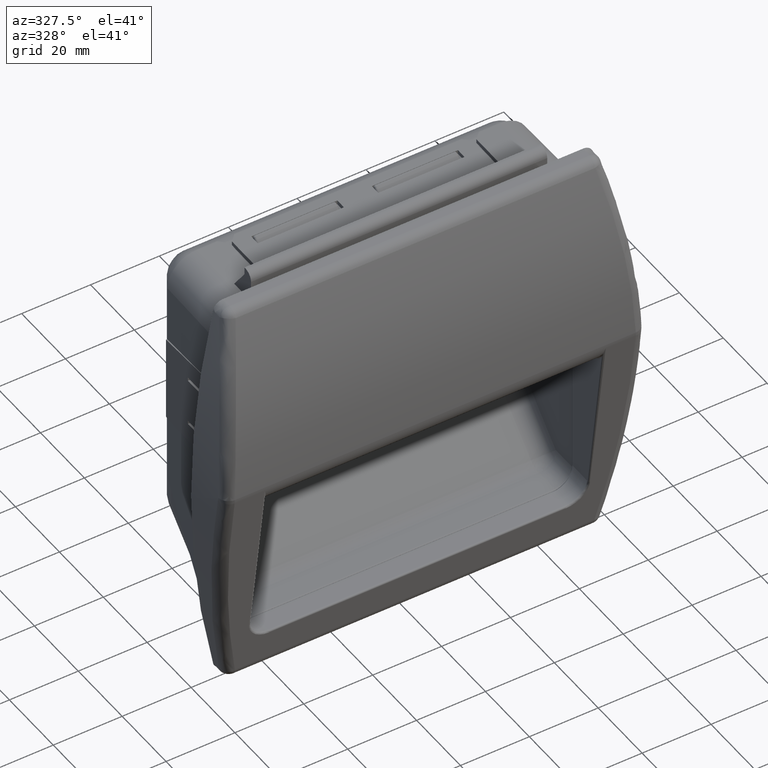
[diagram: clean part render]
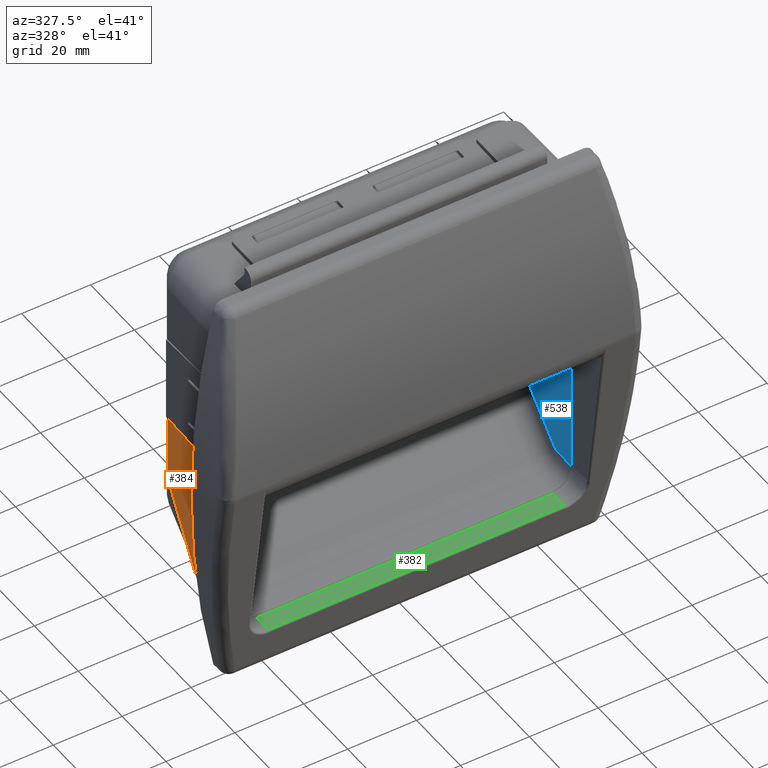
[diagram: same view with three faces highlighted in distinct colors, each labeled with its STEP entity id]
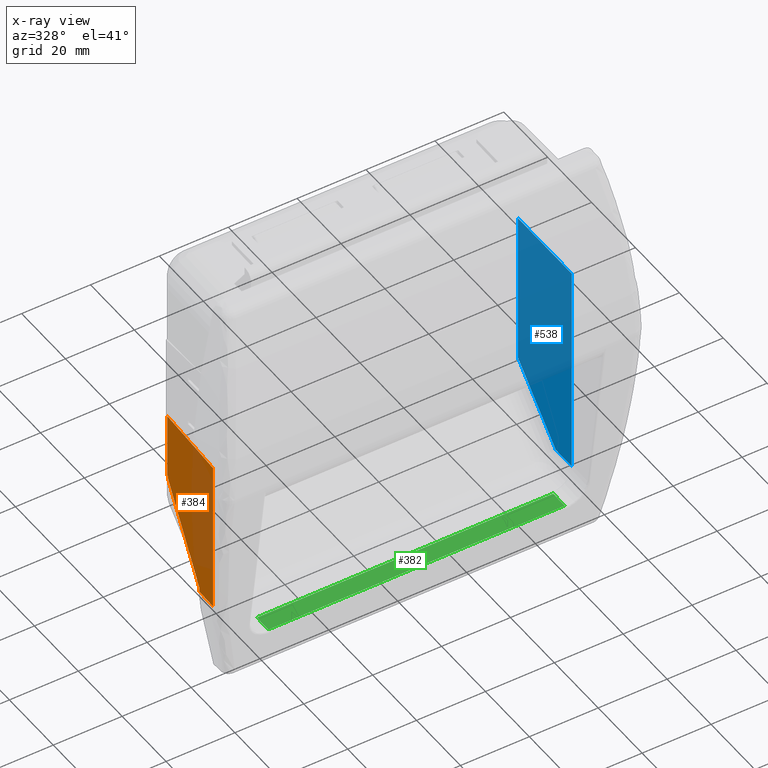
[diagram: x-ray of the same camera — body ghosted, the three highlighted faces saturated]
A machine part, auxiliary view with three faces highlighted in distinct colors.
The next image is the same camera in x-ray (body ghosted, the three faces saturated) — at least one of them is partly hidden behind the body in this view.
Their STEP definitions:

[orange] entity #384 — the highlighted planar face has unit normal (-0.9998, 0.0175, 0).
#384=ADVANCED_FACE('',(#3206),#3205,.T.);
#3205=PLANE('',#10764);
#3206=FACE_OUTER_BOUND('',#10765,.T.);
#10761=CARTESIAN_POINT('',(-2.51387872880E+02,1.35000000100E+00,-4.71920669007E+01));
#10762=DIRECTION('',(-9.99847695156E-01,1.74524064382E-02,0.00000000000E+00));
#10763=DIRECTION('',(0.00000000000E+00,0.00000000000E+00,1.00000000000E+00));
#10764=AXIS2_PLACEMENT_3D('',#10761,#10762,#10763);
#10765=EDGE_LOOP('',(#17481,#17482,#17483,#17484,#17485,#17486,#17487));
#17481=ORIENTED_EDGE('',*,*,#20596,.T.);
#17482=ORIENTED_EDGE('',*,*,#20597,.T.);
#17483=ORIENTED_EDGE('',*,*,#20598,.T.);
#17484=ORIENTED_EDGE('',*,*,#20599,.T.);
#17485=ORIENTED_EDGE('',*,*,#19892,.F.);
#17486=ORIENTED_EDGE('',*,*,#20582,.T.);
#17487=ORIENTED_EDGE('',*,*,#20600,.T.);
#19892=EDGE_CURVE('',#21748,#21755,#21756,.T.);
#20582=EDGE_CURVE('',#21748,#26353,#26354,.T.);
#20596=EDGE_CURVE('',#26440,#26441,#26442,.T.);
#20597=EDGE_CURVE('',#26441,#26448,#26449,.T.);
#20598=EDGE_CURVE('',#26448,#26455,#26456,.T.);
#20599=EDGE_CURVE('',#26455,#21755,#26462,.T.);
#20600=EDGE_CURVE('',#26353,#26440,#26468,.T.);
#21748=VERTEX_POINT('',#33549);
#21755=VERTEX_POINT('',#33553);
#21756=LINE('',#33554,#33555);
#26353=VERTEX_POINT('',#36708);
#26354=CIRCLE('',#36712,4.99942496812E+00);
#26440=VERTEX_POINT('',#36761);
#26441=VERTEX_POINT('',#36762);
#26442=LINE('',#36763,#36764);
#26448=VERTEX_POINT('',#36766);
#26449=LINE('',#36767,#36768);
#26455=VERTEX_POINT('',#36770);
#26456=LINE('',#36771,#36772);
#26462=LINE('',#36774,#36775);
#26468=LINE('',#36777,#36778);
#33549=CARTESIAN_POINT('',(-2.50975060595E+02,2.50000000000E+01,-1.48150801757E+01));
#33553=CARTESIAN_POINT('',(-2.50975060595E+02,2.50000000000E+01,3.29999999998E+00));
#33554=CARTESIAN_POINT('',(-2.50975060595E+02,2.50000000000E+01,-1.48150801757E+01));
#33555=VECTOR('',#33556,1.81150801757E+01);
#33556=DIRECTION('',(0.00000000000E+00,0.00000000000E+00,1.00000000000E+00));
#36708=CARTESIAN_POINT('',(-2.50987497946E+02,2.42874646286E+01,-1.73875589529E+01));
#36709=CARTESIAN_POINT('',(-2.51062312591E+02,2.00013364686E+01,-1.48150585784E+01));
#36710=DIRECTION('',(-9.99847695156E-01,1.74524064387E-02,-8.61258690903E-15));
#36711=DIRECTION('',(-1.74524064386E-02,-9.99847695147E-01,4.31996858020E-06));
#36712=AXIS2_PLACEMENT_3D('',#36709,#36710,#36711);
#36761=CARTESIAN_POINT('',(-2.51236886569E+02,1.00000000000E+01,-4.12000000005E+01));
#36762=CARTESIAN_POINT('',(-2.51236886569E+02,1.00000000000E+01,-4.24897156697E+01));
#36763=CARTESIAN_POINT('',(-2.51236886569E+02,1.00000000000E+01,-4.12000000005E+01));
#36764=VECTOR('',#36765,1.28971566924E+00);
#36765=DIRECTION('',(0.00000000000E+00,0.00000000000E+00,-1.00000000000E+00));
#36766=CARTESIAN_POINT('',(-2.51350344491E+02,3.50000000091E+00,-4.26018790006E+01));
#36767=CARTESIAN_POINT('',(-2.51236886569E+02,1.00000000000E+01,-4.24897156697E+01));
#36768=VECTOR('',#36769,6.50195765144E+00);
#36769=DIRECTION('',(-1.74498094428E-02,-9.99698913397E-01,-1.72507015400E-02));
#36770=CARTESIAN_POINT('',(-2.51350344491E+02,3.50000000091E+00,2.29999999998E+00));
#36771=CARTESIAN_POINT('',(-2.51350344491E+02,3.50000000091E+00,-4.26018790006E+01));
#36772=VECTOR('',#36773,4.49018790006E+01);
#36773=DIRECTION('',(0.00000000000E+00,0.00000000000E+00,1.00000000000E+00));
#36774=CARTESIAN_POINT('',(-2.51350344491E+02,3.50000000091E+00,2.30000000001E+00));
#36775=VECTOR('',#36776,2.15265147658E+01);
#36776=DIRECTION('',(1.74335650728E-02,9.98768274055E-01,4.64543383284E-02));
#36777=CARTESIAN_POINT('',(-2.50987497946E+02,2.42874646286E+01,-1.73875589529E+01));
#36778=VECTOR('',#36779,2.77709594513E+01);
#36779=DIRECTION('',(-8.98019469588E-03,-5.14475009538E-01,-8.57458349230E-01));

[blue] entity #538 — the highlighted planar face has unit normal (-1, 0, 0).
#538=ADVANCED_FACE('',(#4756),#4755,.T.);
#4755=PLANE('',#11922);
#4756=FACE_OUTER_BOUND('',#11923,.T.);
#11919=CARTESIAN_POINT('',(-1.49150344491E+02,2.74500000000E+01,-4.88479331005E+01));
#11920=DIRECTION('',(-1.00000000000E+00,0.00000000000E+00,0.00000000000E+00));
#11921=DIRECTION('',(0.00000000000E+00,-1.00000000000E+00,0.00000000000E+00));
#11922=AXIS2_PLACEMENT_3D('',#11919,#11920,#11921);
#11923=EDGE_LOOP('',(#18354,#18355,#18356,#18357,#18358));
#18354=ORIENTED_EDGE('',*,*,#20969,.F.);
#18355=ORIENTED_EDGE('',*,*,#20972,.T.);
#18356=ORIENTED_EDGE('',*,*,#20973,.T.);
#18357=ORIENTED_EDGE('',*,*,#20974,.T.);
#18358=ORIENTED_EDGE('',*,*,#20975,.F.);
#20969=EDGE_CURVE('',#28896,#28903,#28904,.T.);
#20972=EDGE_CURVE('',#28896,#28922,#28923,.T.);
#20973=EDGE_CURVE('',#28922,#28929,#28930,.T.);
#20974=EDGE_CURVE('',#28929,#28936,#28937,.T.);
#20975=EDGE_CURVE('',#28903,#28936,#28943,.T.);
#28896=VERTEX_POINT('',#38364);
#28903=VERTEX_POINT('',#38369);
#28904=LINE('',#38370,#38371);
#28922=VERTEX_POINT('',#38394);
#28923=LINE('',#38395,#38396);
#28929=VERTEX_POINT('',#38398);
#28930=LINE('',#38399,#38400);
#28936=VERTEX_POINT('',#38402);
#28937=LINE('',#38403,#38404);
#28943=LINE('',#38406,#38407);
#38364=CARTESIAN_POINT('',(-1.49150344491E+02,2.50000000000E+01,1.98999999995E+01));
#38369=CARTESIAN_POINT('',(-1.49150344491E+02,4.99999999978E-01,1.98999999995E+01));
#38370=CARTESIAN_POINT('',(-1.49150344491E+02,2.50000000000E+01,1.98999999995E+01));
#38371=VECTOR('',#38372,2.45000000000E+01);
#38372=DIRECTION('',(0.00000000000E+00,-1.00000000000E+00,0.00000000000E+00));
#38394=CARTESIAN_POINT('',(-1.49150344491E+02,2.50000000000E+01,-2.52986260639E+01));
#38395=CARTESIAN_POINT('',(-1.49150344491E+02,2.50000000000E+01,1.98999999995E+01));
#38396=VECTOR('',#38397,4.51986260634E+01);
#38397=DIRECTION('',(0.00000000000E+00,0.00000000000E+00,-1.00000000000E+00));
#38398=CARTESIAN_POINT('',(-1.49150344491E+02,7.70050506337E+00,-4.25981210005E+01));
#38399=CARTESIAN_POINT('',(-1.49150344491E+02,2.50000000000E+01,-2.52986260639E+01));
#38400=VECTOR('',#38401,2.44651803616E+01);
#38401=DIRECTION('',(0.00000000000E+00,-7.07106781187E-01,-7.07106781187E-01));
#38402=CARTESIAN_POINT('',(-1.49150344491E+02,4.99999999980E-01,-4.25981210005E+01));
#38403=CARTESIAN_POINT('',(-1.49150344491E+02,7.70050506337E+00,-4.25981210005E+01));
#38404=VECTOR('',#38405,7.20050506339E+00);
#38405=DIRECTION('',(0.00000000000E+00,-1.00000000000E+00,0.00000000000E+00));
#38406=CARTESIAN_POINT('',(-1.49150344491E+02,4.99999999978E-01,1.98999999995E+01));
#38407=VECTOR('',#38408,6.24981210000E+01);
#38408=DIRECTION('',(0.00000000000E+00,3.54562602930E-14,-1.00000000000E+00));

[green] entity #382 — the highlighted planar face has unit normal (0, -0.0175, 0.9998).
#382=ADVANCED_FACE('',(#3186),#3185,.T.);
#3185=PLANE('',#10754);
#3186=FACE_OUTER_BOUND('',#10755,.T.);
#10751=CARTESIAN_POINT('',(-2.50100344491E+02,-6.71121424564E+00,-4.74978106149E+01));
#10752=DIRECTION('',(0.00000000000E+00,-1.74524064396E-02,9.99847695156E-01));
#10753=DIRECTION('',(1.00000000000E+00,0.00000000000E+00,0.00000000000E+00));
#10754=AXIS2_PLACEMENT_3D('',#10751,#10752,#10753);
#10755=EDGE_LOOP('',(#17473,#17474,#17475,#17476));
#17473=ORIENTED_EDGE('',*,*,#20093,.T.);
#17474=ORIENTED_EDGE('',*,*,#19908,.T.);
#17475=ORIENTED_EDGE('',*,*,#20030,.F.);
#17476=ORIENTED_EDGE('',*,*,#20595,.F.);
#19908=EDGE_CURVE('',#21846,#21860,#21867,.T.);
#20030=EDGE_CURVE('',#22694,#21860,#22701,.T.);
#20093=EDGE_CURVE('',#23115,#21846,#23116,.T.);
#20595=EDGE_CURVE('',#23115,#22694,#26434,.T.);
#21846=VERTEX_POINT('',#33635);
#21860=VERTEX_POINT('',#33644);
#21867=LINE('',#33649,#33650);
#22694=VERTEX_POINT('',#34218);
#22701=LINE('',#34222,#34223);
#23115=VERTEX_POINT('',#34478);
#23116=LINE('',#34479,#34480);
#26434=LINE('',#36758,#36759);
#33635=CARTESIAN_POINT('',(-2.41500344491E+02,-6.19201295058E+00,-4.74887479226E+01));
#33644=CARTESIAN_POINT('',(-1.55500344491E+02,-6.19201295058E+00,-4.74887479226E+01));
#33649=CARTESIAN_POINT('',(-2.41500344491E+02,-6.19201295058E+00,-4.74887479226E+01));
#33650=VECTOR('',#33651,8.59999999994E+01);
#33651=DIRECTION('',(1.00000000000E+00,0.00000000000E+00,0.00000000000E+00));
#34218=CARTESIAN_POINT('',(-1.55500344491E+02,-1.00000000000E+00,-4.73981209994E+01));
#34222=CARTESIAN_POINT('',(-1.55500344491E+02,-1.00000000000E+00,-4.73981209994E+01));
#34223=VECTOR('',#34224,5.19280383976E+00);
#34224=DIRECTION('',(0.00000000000E+00,-9.99847695156E-01,-1.74524064396E-02));
#34478=CARTESIAN_POINT('',(-2.41500344491E+02,-1.00000000000E+00,-4.73981209994E+01));
#34479=CARTESIAN_POINT('',(-2.41500344491E+02,-1.00000000000E+00,-4.73981209994E+01));
#34480=VECTOR('',#34481,5.19280383976E+00);
#34481=DIRECTION('',(0.00000000000E+00,-9.99847695156E-01,-1.74524064396E-02));
#36758=CARTESIAN_POINT('',(-2.41500344491E+02,-1.00000000000E+00,-4.73981209994E+01));
#36759=VECTOR('',#36760,8.59999999994E+01);
#36760=DIRECTION('',(1.00000000000E+00,0.00000000000E+00,0.00000000000E+00));